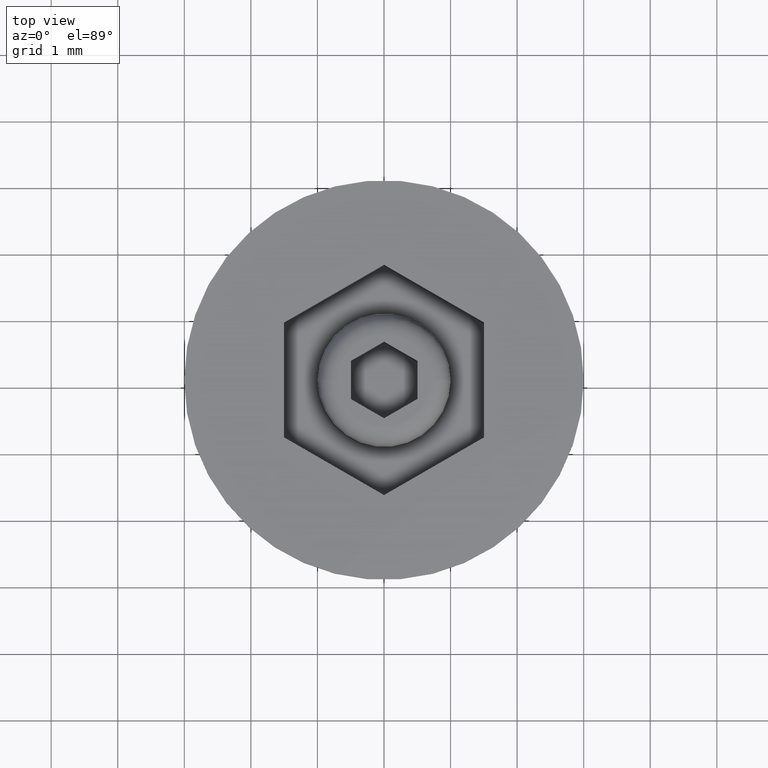
[diagram: clean part render]
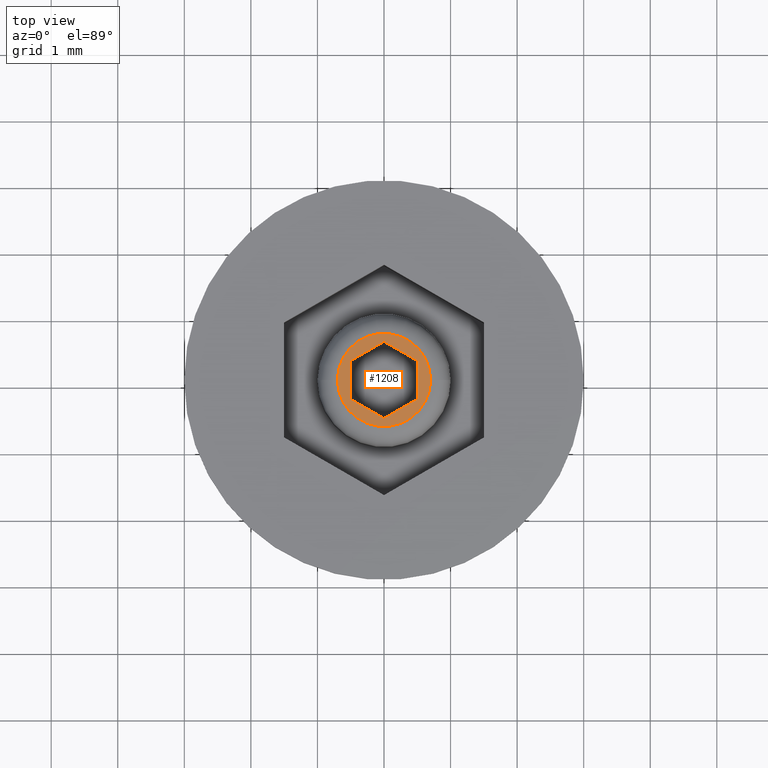
[diagram: same view with one face highlighted and labeled with its STEP entity id]
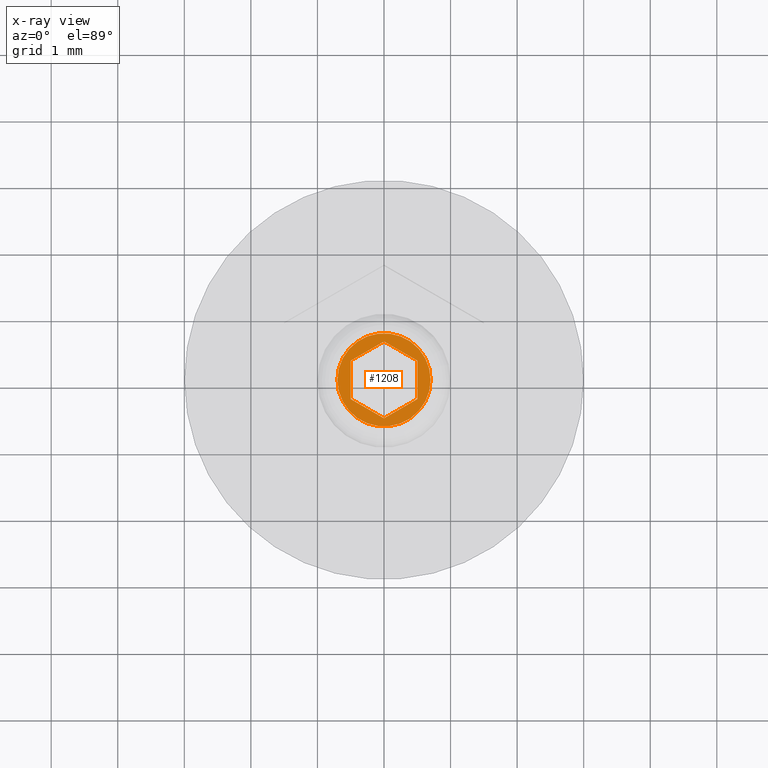
[diagram: x-ray of the same camera — body ghosted, the highlighted face saturated]
A machine part, top view. The second image highlights one B-rep face of the part: STEP entity #1208.
The next image is the same camera in x-ray: the body ghosted, the highlighted face saturated — about 0% of this face is hidden behind the body in this view.
In plain terms, the highlighted planar face has unit normal (0, -0, 1).
Its self-contained STEP definition (entity closure, byte-faithful):
#11 = VERTEX_POINT ( 'NONE', #1154 ) ;
#24 = CARTESIAN_POINT ( 'NONE',  ( 0.000000000000000000, 0.000000000000000000, 0.000000000000000000 ) ) ;
#43 = DIRECTION ( 'NONE',  ( 1.000000000000000000, 0.000000000000000000, 0.000000000000000000 ) ) ;
#73 = VERTEX_POINT ( 'NONE', #937 ) ;
#81 = EDGE_LOOP ( 'NONE', ( #947, #595, #1626, #1543, #813, #169 ) ) ;
#82 = EDGE_CURVE ( 'NONE', #576, #297, #1496, .T. ) ;
#127 = CARTESIAN_POINT ( 'NONE',  ( 0.5000000000000006661, -0.2886751345948133651, 0.000000000000000000 ) ) ;
#136 = DIRECTION ( 'NONE',  ( -3.755786496842891169E-16, 1.000000000000000000, 0.000000000000000000 ) ) ;
#139 = DIRECTION ( 'NONE',  ( 1.877893248421446324E-16, -1.000000000000000000, 0.000000000000000000 ) ) ;
#166 = CARTESIAN_POINT ( 'NONE',  ( 0.000000000000000000, 0.000000000000000000, 0.000000000000000000 ) ) ;
#169 = ORIENTED_EDGE ( 'NONE', *, *, #82, .F. ) ;
#184 = DIRECTION ( 'NONE',  ( -0.000000000000000000, -0.000000000000000000, 1.000000000000000000 ) ) ;
#200 = DIRECTION ( 'NONE',  ( 1.000000000000000000, 0.000000000000000000, 0.000000000000000000 ) ) ;
#212 = VERTEX_POINT ( 'NONE', #1415 ) ;
#216 = VECTOR ( 'NONE', #227, 1000.000000000000114 ) ;
#227 = DIRECTION ( 'NONE',  ( -0.8660254037844385966, -0.4999999999999999445, 0.000000000000000000 ) ) ;
#242 = EDGE_CURVE ( 'NONE', #571, #639, #407, .T. ) ;
#275 = CARTESIAN_POINT ( 'NONE',  ( -0.5000000000000006661, 0.2886751345948134206, 0.000000000000000000 ) ) ;
#297 = VERTEX_POINT ( 'NONE', #1464 ) ;
#307 = PLANE ( 'NONE',  #1124 ) ;
#358 = VECTOR ( 'NONE', #1432, 1000.000000000000114 ) ;
#364 = ORIENTED_EDGE ( 'NONE', *, *, #1121, .T. ) ;
#407 = LINE ( 'NONE', #1541, #837 ) ;
#443 = AXIS2_PLACEMENT_3D ( 'NONE', #24, #184, #746 ) ;
#452 = DIRECTION ( 'NONE',  ( 0.000000000000000000, -0.000000000000000000, 1.000000000000000000 ) ) ;
#482 = CARTESIAN_POINT ( 'NONE',  ( 0.5000000000000004441, 0.2886751345948134762, 0.000000000000000000 ) ) ;
#484 = CARTESIAN_POINT ( 'NONE',  ( 0.5000000000000004441, 0.2886751345948134762, 0.000000000000000000 ) ) ;
#489 = ORIENTED_EDGE ( 'NONE', *, *, #756, .T. ) ;
#532 = CIRCLE ( 'NONE', #443, 0.7000000000000007327 ) ;
#571 = VERTEX_POINT ( 'NONE', #127 ) ;
#576 = VERTEX_POINT ( 'NONE', #1829 ) ;
#587 = FACE_OUTER_BOUND ( 'NONE', #831, .T. ) ;
#595 = ORIENTED_EDGE ( 'NONE', *, *, #242, .F. ) ;
#639 = VERTEX_POINT ( 'NONE', #484 ) ;
#645 = CARTESIAN_POINT ( 'NONE',  ( -1.080656617436826796E-16, 0.5773502691896266192, 0.000000000000000000 ) ) ;
#654 = VECTOR ( 'NONE', #1123, 1000.000000000000114 ) ;
#734 = LINE ( 'NONE', #482, #358 ) ;
#746 = DIRECTION ( 'NONE',  ( 1.000000000000000000, 0.000000000000000000, 0.000000000000000000 ) ) ;
#756 = EDGE_CURVE ( 'NONE', #212, #73, #1330, .T. ) ;
#765 = VECTOR ( 'NONE', #1641, 1000.000000000000114 ) ;
#813 = ORIENTED_EDGE ( 'NONE', *, *, #1721, .F. ) ;
#831 = EDGE_LOOP ( 'NONE', ( #364, #489 ) ) ;
#837 = VECTOR ( 'NONE', #136, 1000.000000000000000 ) ;
#881 = EDGE_CURVE ( 'NONE', #11, #571, #1226, .T. ) ;
#937 = CARTESIAN_POINT ( 'NONE',  ( 0.7000000000000007327, 0.000000000000000000, 0.000000000000000000 ) ) ;
#947 = ORIENTED_EDGE ( 'NONE', *, *, #1144, .F. ) ;
#964 = CARTESIAN_POINT ( 'NONE',  ( -0.5000000000000005551, -0.2886751345948132541, 0.000000000000000000 ) ) ;
#1014 = VECTOR ( 'NONE', #139, 1000.000000000000000 ) ;
#1024 = DIRECTION ( 'NONE',  ( -0.000000000000000000, -0.000000000000000000, 1.000000000000000000 ) ) ;
#1101 = LINE ( 'NONE', #275, #1014 ) ;
#1121 = EDGE_CURVE ( 'NONE', #73, #212, #532, .T. ) ;
#1123 = DIRECTION ( 'NONE',  ( 0.8660254037844384856, -0.5000000000000002220, 0.000000000000000000 ) ) ;
#1124 = AXIS2_PLACEMENT_3D ( 'NONE', #166, #452, #43 ) ;
#1144 = EDGE_CURVE ( 'NONE', #639, #576, #734, .T. ) ;
#1154 = CARTESIAN_POINT ( 'NONE',  ( -5.830569548972511216E-17, -0.5773502691896265082, 0.000000000000000000 ) ) ;
#1208 = ADVANCED_FACE ( 'NONE', ( #587, #1451 ), #307, .T. ) ;
#1226 = LINE ( 'NONE', #1769, #765 ) ;
#1320 = CARTESIAN_POINT ( 'NONE',  ( -0.5000000000000005551, -0.2886751345948132541, 0.000000000000000000 ) ) ;
#1330 = CIRCLE ( 'NONE', #1565, 0.7000000000000007327 ) ;
#1415 = CARTESIAN_POINT ( 'NONE',  ( -0.7000000000000007327, 1.040949779275251126E-16, 0.000000000000000000 ) ) ;
#1432 = DIRECTION ( 'NONE',  ( -0.8660254037844385966, 0.4999999999999999445, 0.000000000000000000 ) ) ;
#1451 = FACE_BOUND ( 'NONE', #81, .T. ) ;
#1464 = CARTESIAN_POINT ( 'NONE',  ( -0.5000000000000006661, 0.2886751345948134206, 0.000000000000000000 ) ) ;
#1465 = EDGE_CURVE ( 'NONE', #1582, #11, #1557, .T. ) ;
#1496 = LINE ( 'NONE', #645, #216 ) ;
#1541 = CARTESIAN_POINT ( 'NONE',  ( 0.5000000000000006661, -0.2886751345948133651, 0.000000000000000000 ) ) ;
#1543 = ORIENTED_EDGE ( 'NONE', *, *, #1465, .F. ) ;
#1557 = LINE ( 'NONE', #964, #654 ) ;
#1565 = AXIS2_PLACEMENT_3D ( 'NONE', #1722, #1024, #200 ) ;
#1582 = VERTEX_POINT ( 'NONE', #1320 ) ;
#1626 = ORIENTED_EDGE ( 'NONE', *, *, #881, .F. ) ;
#1641 = DIRECTION ( 'NONE',  ( 0.8660254037844387076, 0.4999999999999997780, 0.000000000000000000 ) ) ;
#1721 = EDGE_CURVE ( 'NONE', #297, #1582, #1101, .T. ) ;
#1722 = CARTESIAN_POINT ( 'NONE',  ( 0.000000000000000000, 0.000000000000000000, 0.000000000000000000 ) ) ;
#1769 = CARTESIAN_POINT ( 'NONE',  ( -5.830569548972511216E-17, -0.5773502691896265082, 0.000000000000000000 ) ) ;
#1829 = CARTESIAN_POINT ( 'NONE',  ( -1.084202172485504434E-16, 0.5773502691896265082, 0.000000000000000000 ) ) ;